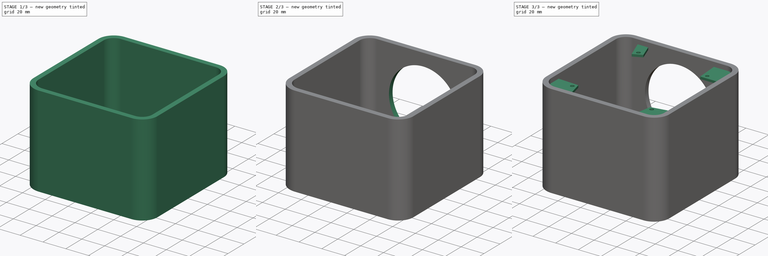
[diagram: build sequence overview — one tinted view per stage of 3, left to right]
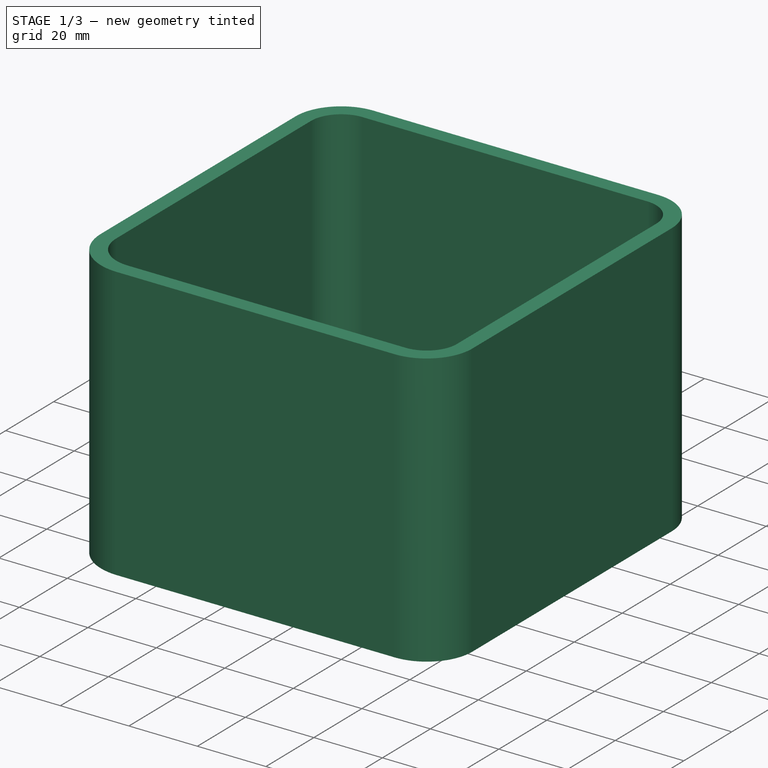
[diagram: stage 1 of 3 — iso view after this stage's code; geometry added in this stage tinted green]
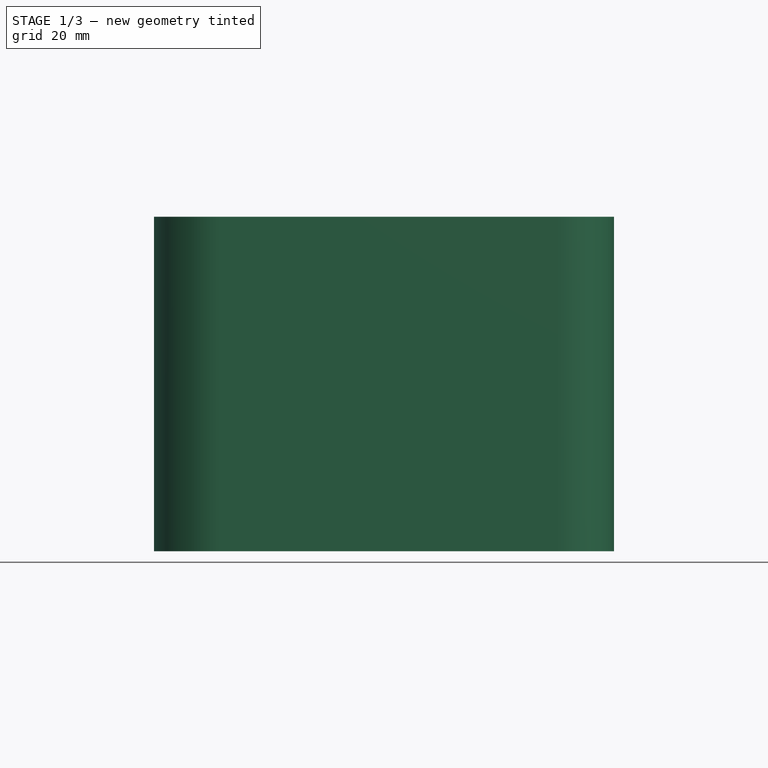
[diagram: stage 1 of 3 — front view after this stage's code; geometry added in this stage tinted green]
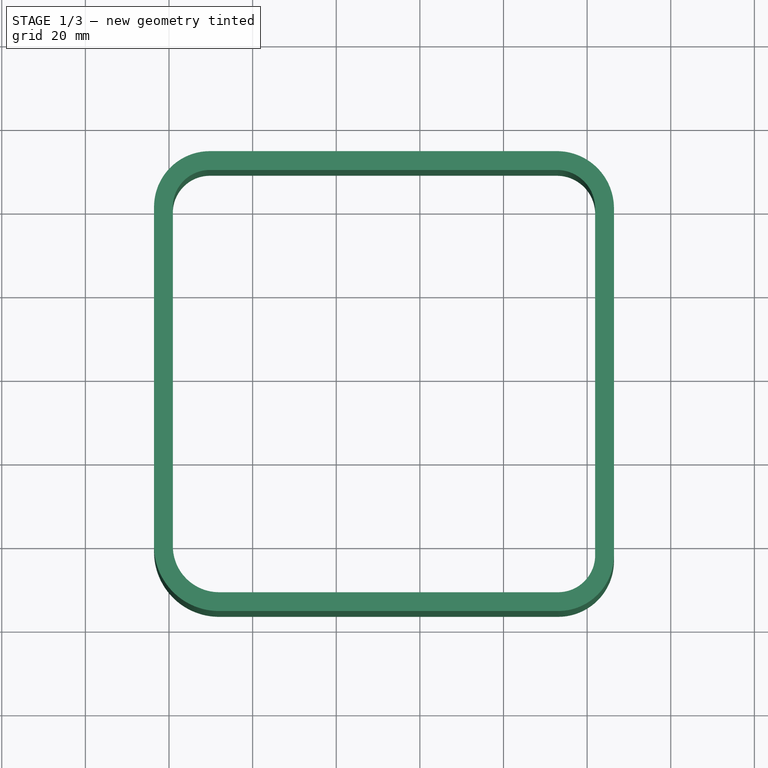
[diagram: stage 1 of 3 — top view after this stage's code; geometry added in this stage tinted green]
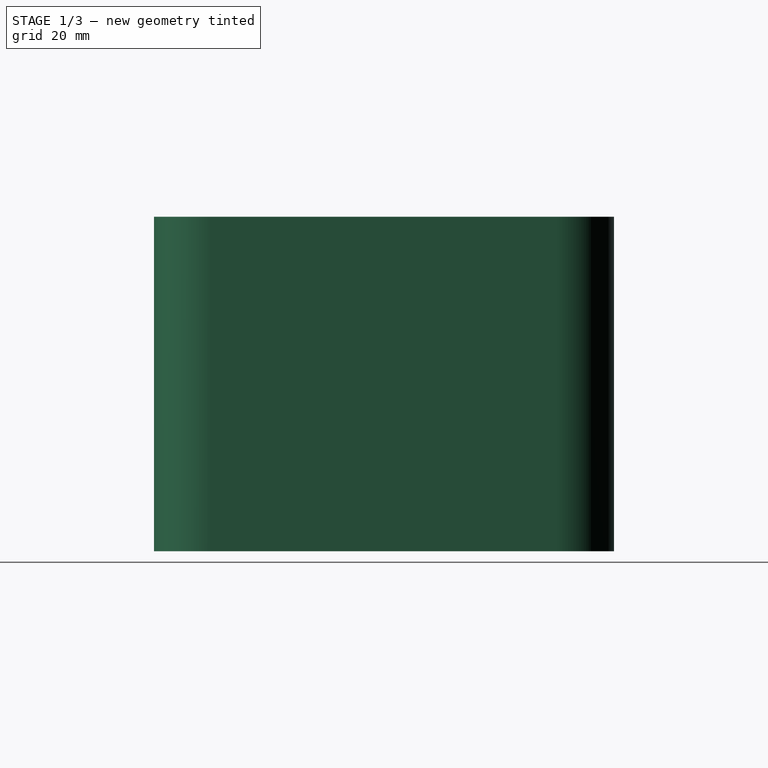
[diagram: stage 1 of 3 — right view after this stage's code; geometry added in this stage tinted green]
FCSTD DOCUMENT  (FreeCAD 1.0R39319 (Git))
Label: wakeshell
License: All rights reserved
LicenseURL: https://en.wikipedia.org/wiki/All_rights_reserved
objects: PartDesign::Pad×4, Sketcher::SketchObject×3, Part::Feature×1, App::Part×1, PartDesign::Hole×1, PartDesign::Body×1
note: 23 computed .brp shape members not serialized (recipe doc carries the construction recipe); baked Part::Feature solids carry a one-line shape summary decoded from their .brp

FEATURE [Part::Feature] Part__Feature  label="wake_PCB"
  shape: bbox 100 x 100 x 1.51 mm, 72 faces (baked)
FEATURE [App::Part] wake_1  label="wake 1"
  Group = -> [Part__Feature]
  Origin = -> Origin
FEATURE [Sketcher::SketchObject] Sketch
  ArcFitTolerance = 1e-06
  AttachmentSupport = -> [XY_Plane001]
  FullyConstrained = false
  MakeInternals = false
  MapMode = 5
  sketch-geometry (24):
    g0: LineSegment StartX=31.9744 StartY=-136.374 StartZ=0 EndX=113.062 EndY=-136.374 EndZ=0
    g1: LineSegment StartX=126.418 StartY=-123.018 StartZ=0 EndX=126.418 EndY=-40.0418 EndZ=0
    g2: LineSegment StartX=112.751 StartY=-26.3744 StartZ=0 EndX=29.7744 EndY=-26.3744 EndZ=0
    g3: LineSegment StartX=16.418 StartY=-39.7307 StartZ=0 EndX=16.418 EndY=-120.818 EndZ=0
    g4: GeomPoint [constr] X=71.418 Y=-81.3744 Z=0
    g5: ArcOfCircle CenterX=31.9744 CenterY=-120.818 CenterZ=0 NormalX=0 NormalY=0 NormalZ=1 AngleXU=0 Radius=15.5563 StartAngle=3.14159 EndAngle=4.71239
    g6: GeomPoint [constr] X=16.418 Y=-136.374 Z=0
    g7: ArcOfCircle CenterX=113.062 CenterY=-123.018 CenterZ=0 NormalX=0 NormalY=0 NormalZ=1 AngleXU=0 Radius=13.3563 StartAngle=4.71239 EndAngle=6.28319
    g8: GeomPoint [constr] X=126.418 Y=-136.374 Z=0
    g9: ArcOfCircle CenterX=29.7744 CenterY=-39.7307 CenterZ=0 NormalX=0 NormalY=0 NormalZ=1 AngleXU=0 Radius=13.3563 StartAngle=1.5708 EndAngle=3.14159
    g10: GeomPoint [constr] X=16.418 Y=-26.3744 Z=0
    g11: ArcOfCircle CenterX=112.751 CenterY=-40.0418 CenterZ=0 NormalX=0 NormalY=0 NormalZ=1 AngleXU=0 Radius=13.6675 StartAngle=1e-16 EndAngle=1.5708
    g12: GeomPoint [constr] X=126.418 Y=-26.3744 Z=0
    g13: ArcOfCircle CenterX=112.751 CenterY=-40.0418 CenterZ=0 NormalX=0 NormalY=0 NormalZ=1 AngleXU=0 Radius=9.17082 StartAngle=0 EndAngle=1.5708
    g14: LineSegment StartX=112.751 StartY=-30.871 StartZ=0 EndX=29.7744 EndY=-30.871 EndZ=0
    g15: ArcOfCircle CenterX=29.7744 CenterY=-39.7307 CenterZ=0 NormalX=0 NormalY=0 NormalZ=1 AngleXU=0 Radius=8.85969 StartAngle=1.5708 EndAngle=3.14159
    g16: LineSegment StartX=20.9147 StartY=-39.7307 StartZ=0 EndX=20.9147 EndY=-120.818 EndZ=0
    g17: ArcOfCircle CenterX=31.9744 CenterY=-120.818 CenterZ=0 NormalX=0 NormalY=0 NormalZ=1 AngleXU=0 Radius=11.0597 StartAngle=3.14159 EndAngle=4.71239
    g18: LineSegment StartX=31.9744 StartY=-131.878 StartZ=0 EndX=113.062 EndY=-131.878 EndZ=0
    g19: ArcOfCircle CenterX=113.062 CenterY=-123.018 CenterZ=0 NormalX=0 NormalY=0 NormalZ=1 AngleXU=0 Radius=8.85969 StartAngle=4.71239 EndAngle=6.28319
    g20: LineSegment StartX=121.921 StartY=-123.018 StartZ=0 EndX=121.921 EndY=-40.0418 EndZ=0
    g21: LineSegment StartX=33.9837 StartY=-30.871 StartZ=0 EndX=39.9602 EndY=-46.9706 EndZ=0
    g22: LineSegment StartX=39.9602 StartY=-46.9706 StartZ=0 EndX=47.8116 EndY=-43.3769 EndZ=0
    g23: LineSegment StartX=47.8116 StartY=-43.3769 StartZ=0 EndX=43.3195 EndY=-30.871 EndZ=0
  constraints (35):
    c: Horizontal(g0)
    c: Horizontal(g2)
    c: Vertical(g1)
    c: Vertical(g3)
    c: Symmetric(g12,g6,g4)
    c: Distance(g8,g6) = 110
    c: Distance(g6,g10) = 110
    c: PointOnObject(g6,g0)
    c: PointOnObject(g6,g3)
    c: Tangent(g0,g5) = -1.5708
    c: Tangent(g3,g5) = -1.5708
    c: PointOnObject(g8,g0)
    c: PointOnObject(g8,g1)
    c: Tangent(g0,g7) = -1.5708
    c: Tangent(g1,g7) = -1.5708
    c: PointOnObject(g10,g2)
    c: PointOnObject(g10,g3)
    c: Tangent(g2,g9) = -1.5708
    c: Tangent(g3,g9) = -1.5708
    c: PointOnObject(g12,g1)
    c: PointOnObject(g12,g2)
    c: Tangent(g1,g11) = -1.5708
    c: Tangent(g2,g11) = -1.5708
    c: Tangent(g13,g14) = -1.5708
    c: Tangent(g13,g20) = -1.5708
    c: Tangent(g14,g15) = -1.5708
    c: Tangent(g15,g16) = -1.5708
    c: Tangent(g16,g17) = -1.5708
    c: Tangent(g17,g18) = -1.5708
    c: Tangent(g18,g19) = -1.5708
    c: Tangent(g19,g20) = -1.5708
    c: PointOnObject(g21,g14)
    c: Coincident(g22,g21)
    c: Coincident(g23,g22)
    c: PointOnObject(g23,g14)
FEATURE [PartDesign::Pad] Pad
  Direction = (0,0,1)
  Length = 76
  Length2 = 10
  Profile = -> Sketch
  ReferenceAxis = -> Sketch [N_Axis]
  Refine = true
  Reversed = true
  Suppressed = false
  Type = 0
FEATURE [PartDesign::Pad] Pad001
  BaseFeature = -> Pad
  Direction = (0,0,1)
  Length = 4
  Length2 = 10
  Profile = -> Pad [Face17]
  Refine = true
  Suppressed = false
  Type = 0
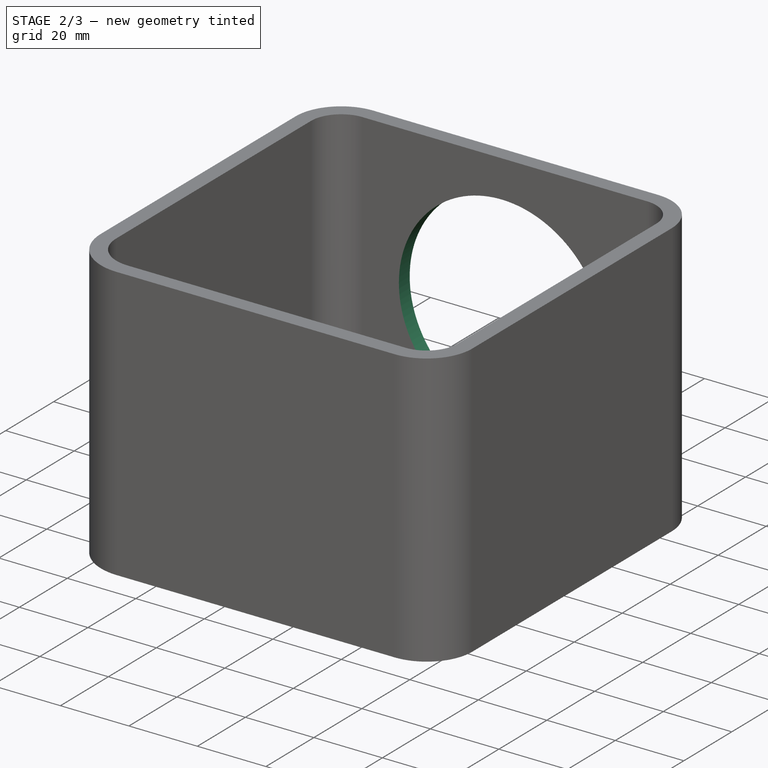
[diagram: stage 2 of 3 — iso view after this stage's code; geometry added in this stage tinted green]
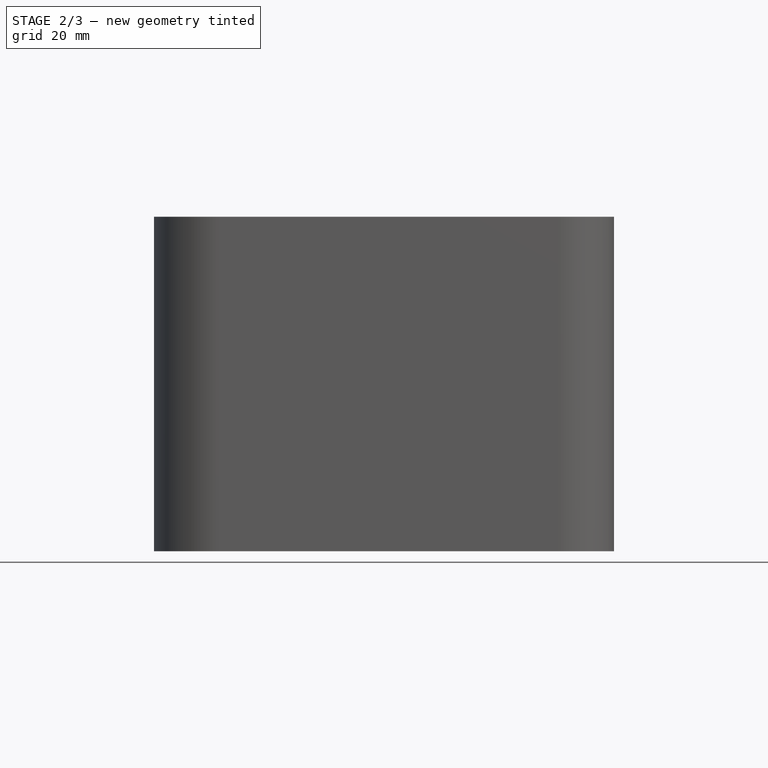
[diagram: stage 2 of 3 — front view after this stage's code; geometry added in this stage tinted green]
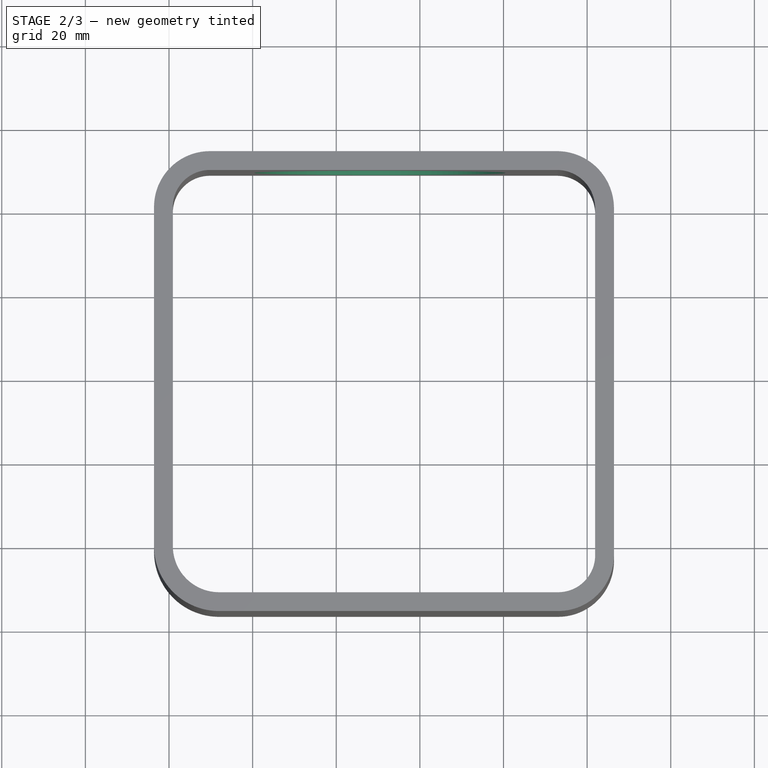
[diagram: stage 2 of 3 — top view after this stage's code; geometry added in this stage tinted green]
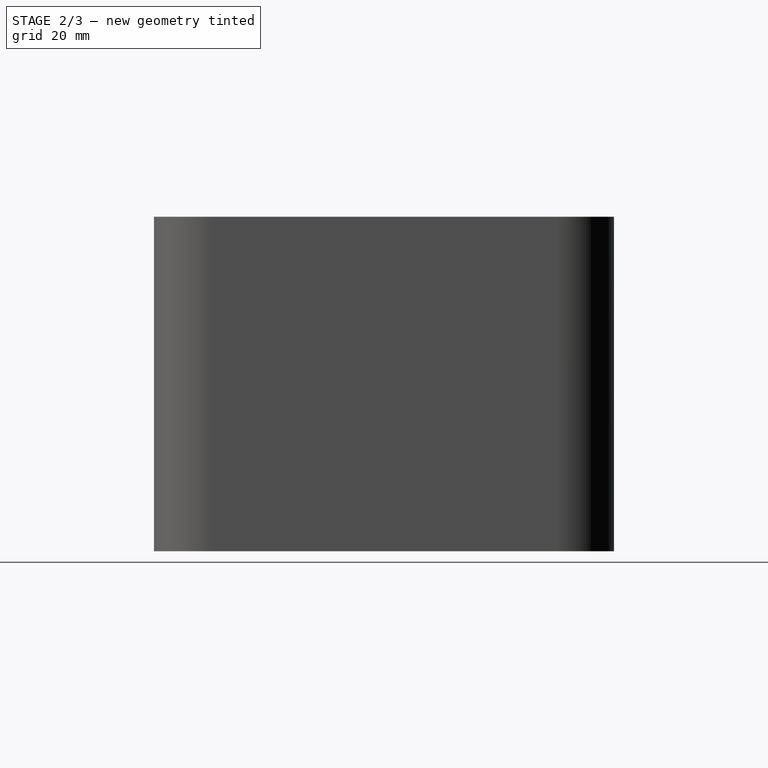
[diagram: stage 2 of 3 — right view after this stage's code; geometry added in this stage tinted green]
FEATURE [Sketcher::SketchObject] Sketch001
  ArcFitTolerance = 1e-06
  AttachmentSupport = -> [XZ_Plane001]
  FullyConstrained = false
  MakeInternals = false
  MapMode = 5
  Placement = pos=(0,0,0) rot=(1,0,0;1.5708rad)
  sketch-geometry (1):
    g0: Circle CenterX=70.4093 CenterY=-36.8798 CenterZ=0 NormalX=0 NormalY=0 NormalZ=1 AngleXU=0 Radius=33.471
FEATURE [PartDesign::Hole] Hole
  BaseFeature = -> Pad001
  CustomThreadClearance = 0
  Depth = 32
  DepthType = 0
  Diameter = 60
  DrillForDepth = false
  DrillPoint = 0
  DrillPointAngle = 118
  HoleCutCountersinkAngle = 90
  HoleCutCustomValues = false
  HoleCutDepth = 0
  HoleCutDiameter = 62.9
  HoleCutType = 0
  ModelThread = false
  Profile = -> Sketch001 [Edge1]
  Refine = true
  Reversed = true
  Suppressed = false
  Tapered = false
  TaperedAngle = 90
  ThreadClass = 0
  ThreadDepth = 32
  ThreadDepthType = 0
  ThreadDirection = 0
  ThreadFit = 0
  ThreadSize = 0
  ThreadType = 0
  Threaded = false
  UseCustomThreadClearance = false
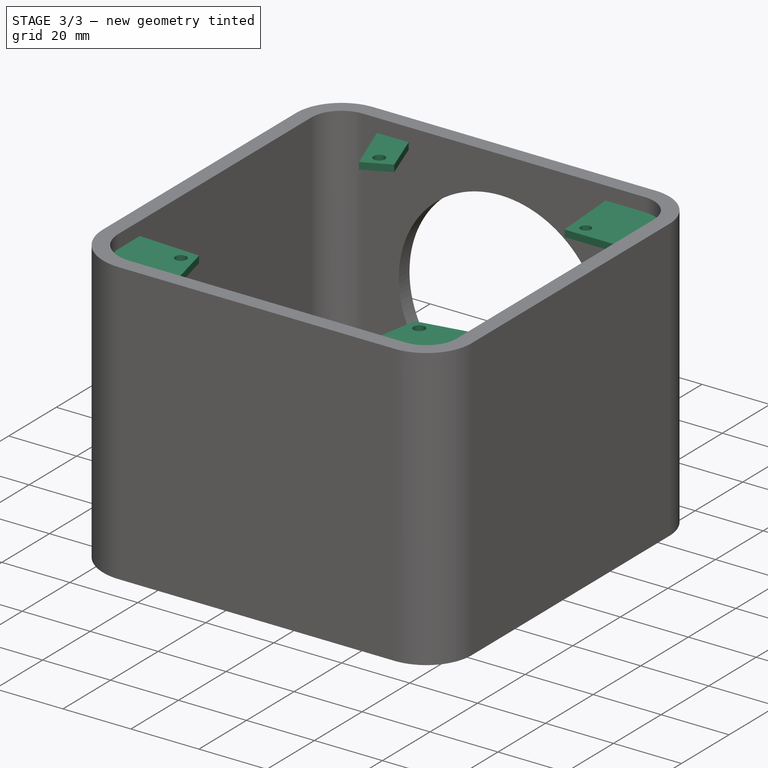
[diagram: stage 3 of 3 — iso view after this stage's code; geometry added in this stage tinted green]
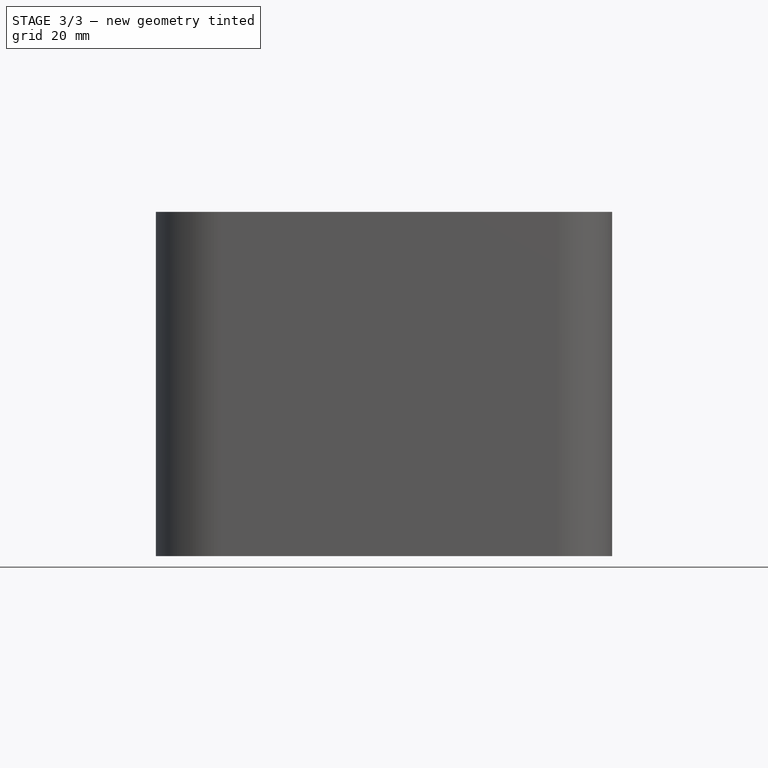
[diagram: stage 3 of 3 — front view after this stage's code; geometry added in this stage tinted green]
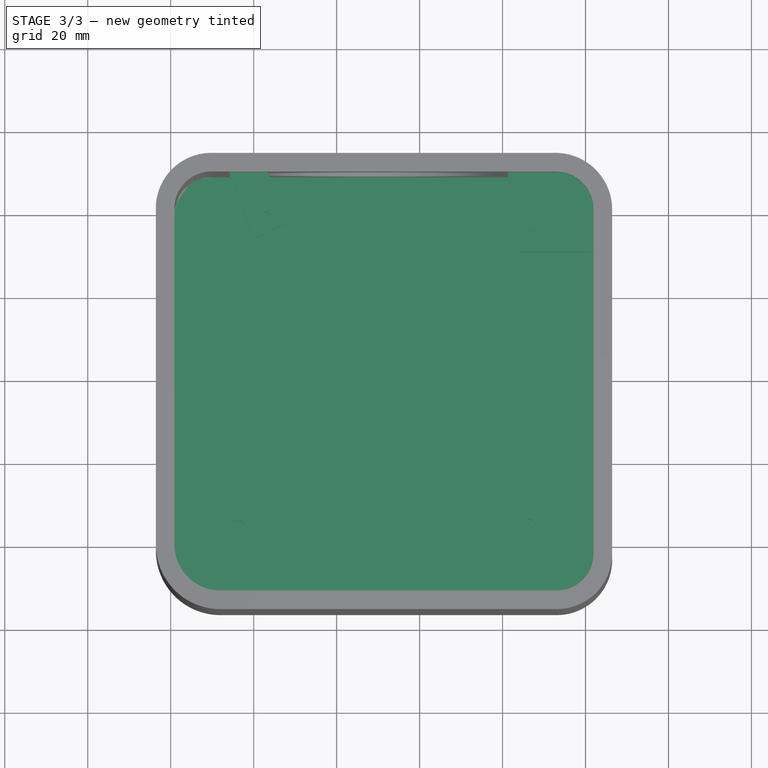
[diagram: stage 3 of 3 — top view after this stage's code; geometry added in this stage tinted green]
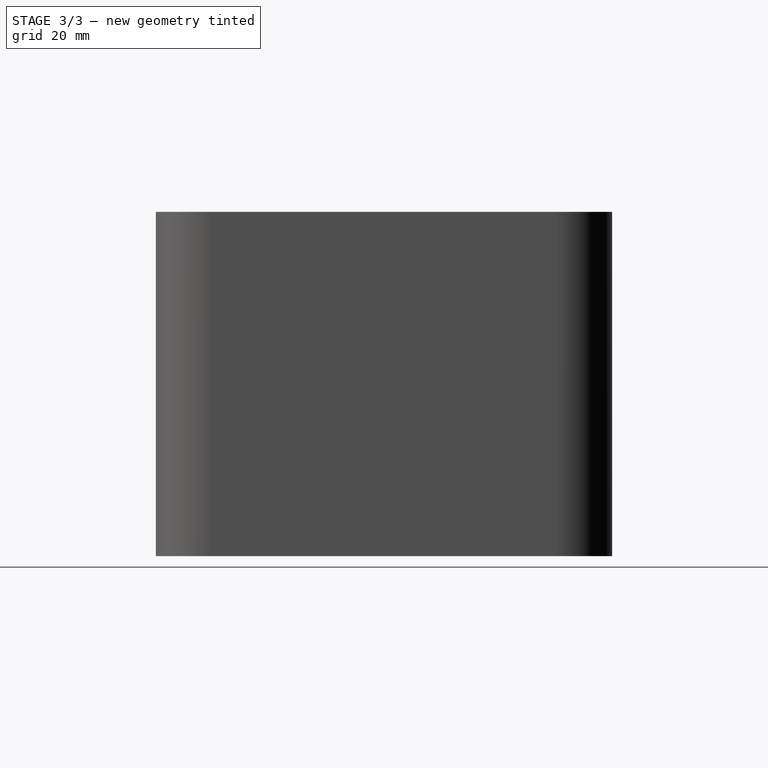
[diagram: stage 3 of 3 — right view after this stage's code; geometry added in this stage tinted green]
FEATURE [Sketcher::SketchObject] Sketch002
  ArcFitTolerance = 1e-06
  AttachmentSupport = -> [XY_Plane001]
  FullyConstrained = false
  MakeInternals = false
  MapMode = 5
  sketch-geometry (32):
    g0: LineSegment StartX=31.9744 StartY=-136.374 StartZ=0 EndX=113.062 EndY=-136.374 EndZ=0
    g1: LineSegment StartX=126.418 StartY=-123.018 StartZ=0 EndX=126.418 EndY=-40.0418 EndZ=0
    g2: LineSegment StartX=112.751 StartY=-26.3744 StartZ=0 EndX=29.7744 EndY=-26.3744 EndZ=0
    g3: LineSegment StartX=16.418 StartY=-39.7307 StartZ=0 EndX=16.418 EndY=-120.818 EndZ=0
    g4: GeomPoint [constr] X=71.418 Y=-81.3744 Z=0
    g5: ArcOfCircle CenterX=31.9744 CenterY=-120.818 CenterZ=0 NormalX=0 NormalY=0 NormalZ=1 AngleXU=0 Radius=15.5563 StartAngle=3.14159 EndAngle=4.71239
    g6: GeomPoint [constr] X=16.418 Y=-136.374 Z=0
    g7: ArcOfCircle CenterX=113.062 CenterY=-123.018 CenterZ=0 NormalX=0 NormalY=0 NormalZ=1 AngleXU=0 Radius=13.3563 StartAngle=4.71239 EndAngle=6.28319
    g8: GeomPoint [constr] X=126.418 Y=-136.374 Z=0
    g9: ArcOfCircle CenterX=29.7744 CenterY=-39.7307 CenterZ=0 NormalX=0 NormalY=0 NormalZ=1 AngleXU=0 Radius=13.3563 StartAngle=1.5708 EndAngle=3.14159
    g10: GeomPoint [constr] X=16.418 Y=-26.3744 Z=0
    g11: ArcOfCircle CenterX=112.751 CenterY=-40.0418 CenterZ=0 NormalX=0 NormalY=0 NormalZ=1 AngleXU=0 Radius=13.6675 StartAngle=1e-16 EndAngle=1.5708
    g12: GeomPoint [constr] X=126.418 Y=-26.3744 Z=0
    g13: LineSegment StartX=101.253 StartY=-30.871 StartZ=0 EndX=43.3195 EndY=-30.871 EndZ=0
    g14: ArcOfCircle CenterX=29.7744 CenterY=-39.7307 CenterZ=0 NormalX=0 NormalY=0 NormalZ=1 AngleXU=0 Radius=8.85969 StartAngle=1.5708 EndAngle=3.14159
    g15: LineSegment StartX=20.9147 StartY=-39.7307 StartZ=0 EndX=20.9147 EndY=-111.837 EndZ=0
    g16: LineSegment StartX=43.644 StartY=-131.878 StartZ=0 EndX=99.9024 EndY=-131.878 EndZ=0
    g17: LineSegment StartX=121.921 StartY=-110.213 StartZ=0 EndX=121.921 EndY=-50.1127 EndZ=0
    g18: LineSegment StartX=33.9837 StartY=-30.871 StartZ=0 EndX=39.9602 EndY=-46.9706 EndZ=0
    g19: LineSegment StartX=39.9602 StartY=-46.9706 StartZ=0 EndX=47.8116 EndY=-43.3769 EndZ=0
    g20: LineSegment StartX=47.8116 StartY=-43.3769 StartZ=0 EndX=43.3195 EndY=-30.871 EndZ=0
    g21: LineSegment StartX=101.253 StartY=-30.871 StartZ=0 EndX=102.674 EndY=-50.1127 EndZ=0
    g22: LineSegment StartX=102.674 StartY=-50.1127 StartZ=0 EndX=121.921 EndY=-50.1127 EndZ=0
    g23: LineSegment StartX=99.9024 StartY=-131.878 StartZ=0 EndX=102.998 EndY=-113.663 EndZ=0
    g24: LineSegment StartX=102.998 StartY=-113.663 StartZ=0 EndX=121.921 EndY=-110.213 EndZ=0
    g25: LineSegment StartX=43.644 StartY=-131.878 StartZ=0 EndX=39.0131 EndY=-112.821 EndZ=0
    g26: LineSegment StartX=20.9147 StartY=-111.837 StartZ=0 EndX=39.0131 EndY=-112.821 EndZ=0
    g27: Circle CenterX=36.2215 CenterY=-116.456 CenterZ=0 NormalX=0 NormalY=0 NormalZ=1 AngleXU=0 Radius=1.65033
    g28: Circle CenterX=42.5716 CenterY=-42.1603 CenterZ=0 NormalX=0 NormalY=0 NormalZ=1 AngleXU=0 Radius=1.64871
    g29: Circle CenterX=106.368 CenterY=-46.4677 CenterZ=0 NormalX=0 NormalY=0 NormalZ=1 AngleXU=0 Radius=1.51274
    g30: Circle CenterX=106.25 CenterY=-116.331 CenterZ=0 NormalX=0 NormalY=0 NormalZ=1 AngleXU=0 Radius=1.6818
    g31: LineSegment StartX=33.9837 StartY=-30.871 StartZ=0 EndX=29.7744 EndY=-30.871 EndZ=0
  constraints (40):
    c: Horizontal(g0)
    c: Horizontal(g2)
    c: Vertical(g1)
    c: Vertical(g3)
    c: Symmetric(g12,g6,g4)
    c: Distance(g8,g6) = 110
    c: Distance(g6,g10) = 110
    c: PointOnObject(g6,g0)
    c: PointOnObject(g6,g3)
    c: Tangent(g0,g5) = -1.5708
    c: Tangent(g3,g5) = -1.5708
    c: PointOnObject(g8,g0)
    c: PointOnObject(g8,g1)
    c: Tangent(g0,g7) = -1.5708
    c: Tangent(g1,g7) = -1.5708
    c: PointOnObject(g10,g2)
    c: PointOnObject(g10,g3)
    c: Tangent(g2,g9) = -1.5708
    c: Tangent(g3,g9) = -1.5708
    c: PointOnObject(g12,g1)
    c: PointOnObject(g12,g2)
    c: Tangent(g1,g11) = -1.5708
    c: Tangent(g2,g11) = -1.5708
    c: Coincident(g31,g14) = -1.5708
    c: Tangent(g14,g15) = -1.5708
    c: PointOnObject(g18,g31)
    c: Coincident(g19,g18)
    c: Coincident(g20,g19)
    c: Coincident(g22,g21)
    c: Horizontal(g22)
    c: Coincident(g24,g23)
    c: Coincident(g26,g25)
    c: Coincident(g17,g24)
    c: Coincident(g16,g23)
    c: Coincident(g13,g21)
    c: Coincident(g17,g22)
    c: Coincident(g13,g20)
    c: PointOnObject(g31,g18)
    c: Coincident(g15,g26)
    c: Coincident(g16,g25)
FEATURE [PartDesign::Pad] Pad002
  BaseFeature = -> Hole
  Direction = (0,0,1)
  Length = 2
  Length2 = 10
  Profile = -> Sketch002
  ReferenceAxis = -> Sketch002 [N_Axis]
  Refine = true
  Reversed = true
  Suppressed = false
  Type = 0
FEATURE [PartDesign::Pad] Pad003
  BaseFeature = -> Pad002
  Direction = (0,0,1)
  Length = 3
  Length2 = 10
  Profile = -> Pad002 [Edge22,Edge23,Edge24,Edge25,Edge26,Edge27,Edge20,Edge21]
  Refine = true
  Reversed = true
  Suppressed = false
  Type = 0
FEATURE [PartDesign::Body] Body
  AllowCompound = false
  Group = -> [Sketch,Pad,Pad001,Sketch001,Hole,Sketch002,Pad002,Pad003]
  Origin = -> Origin001
  Tip = -> Pad003
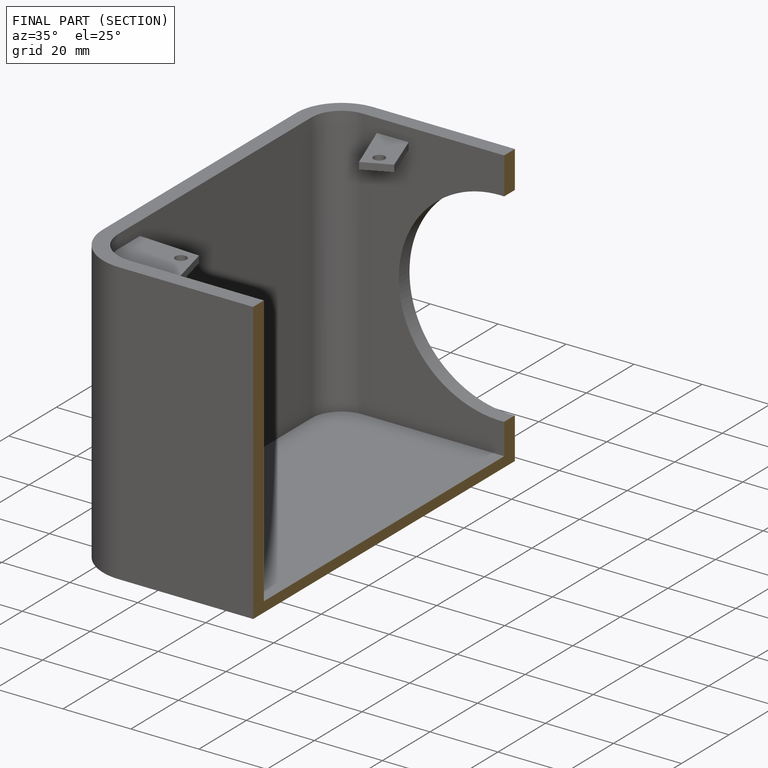
[diagram: finished part — half-section view (interior)]
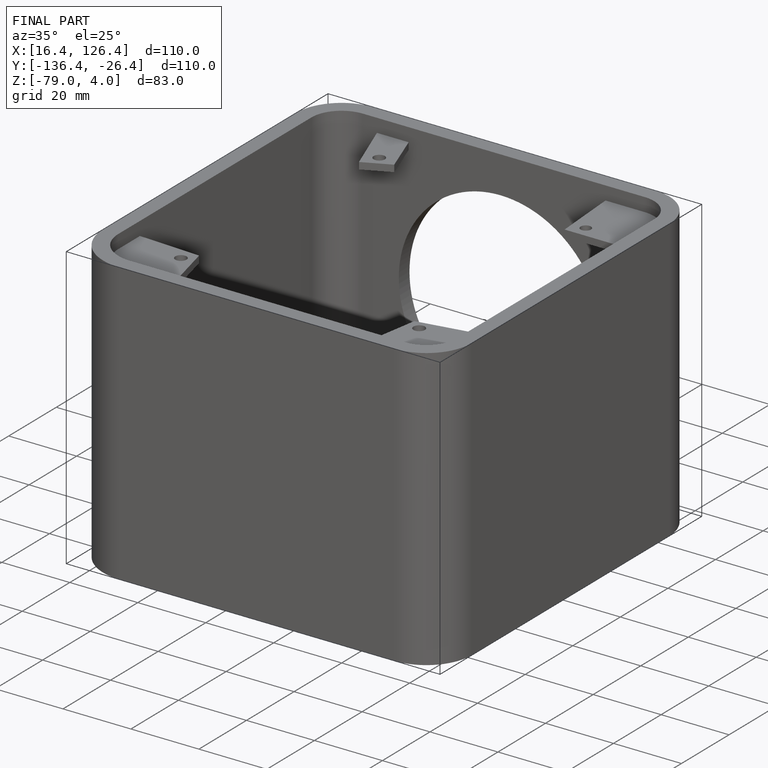
[diagram: finished part — iso view with bounding-box wireframe]
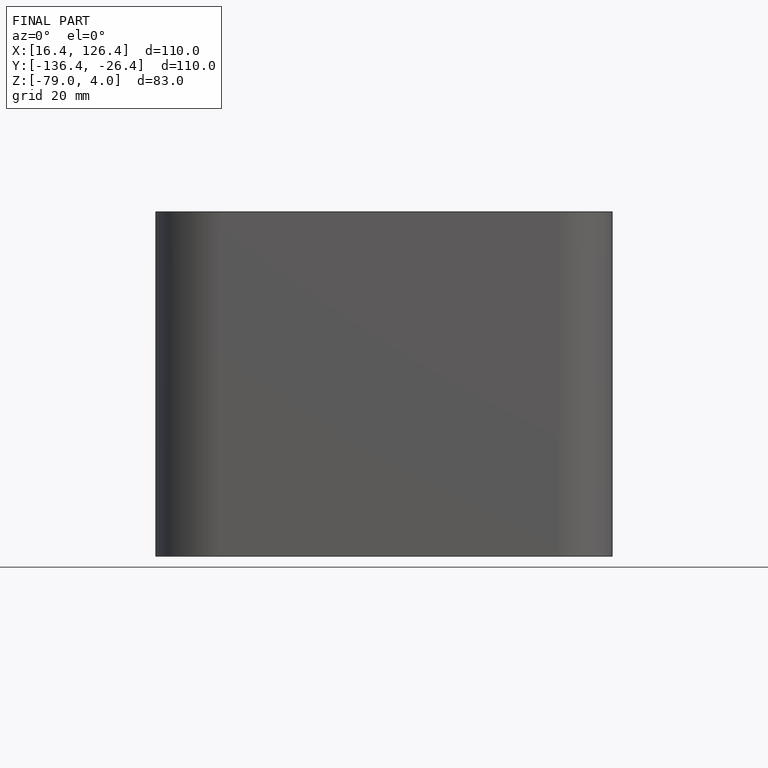
[diagram: finished part — front view with bounding-box wireframe]
